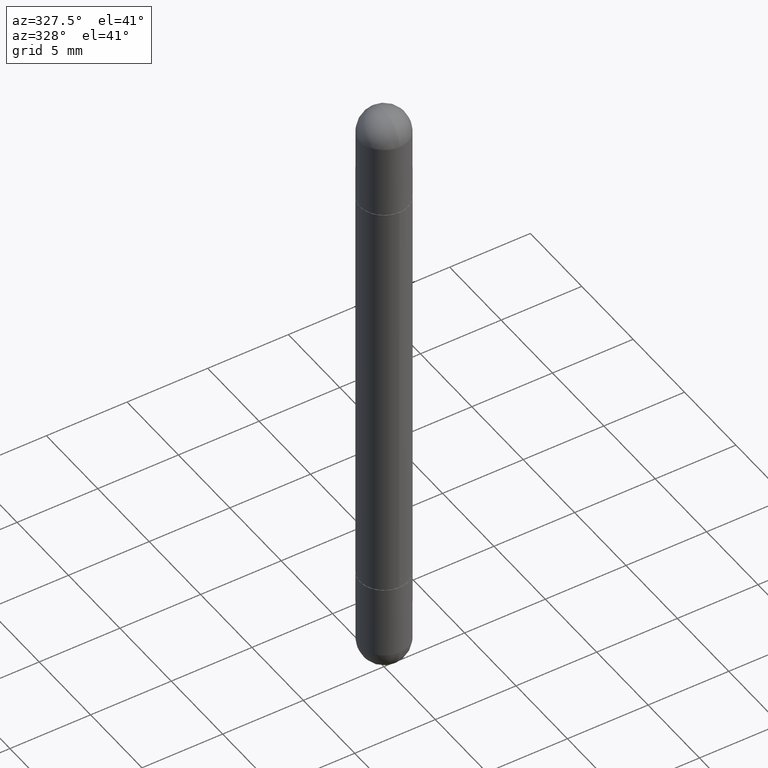
[diagram: clean part render]
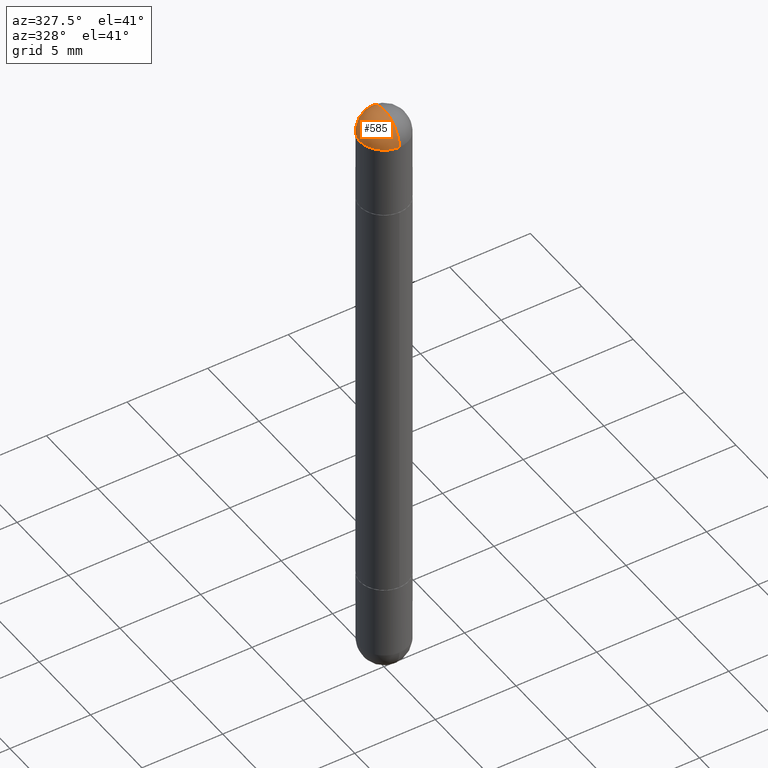
[diagram: same view with one face highlighted and labeled with its STEP entity id]
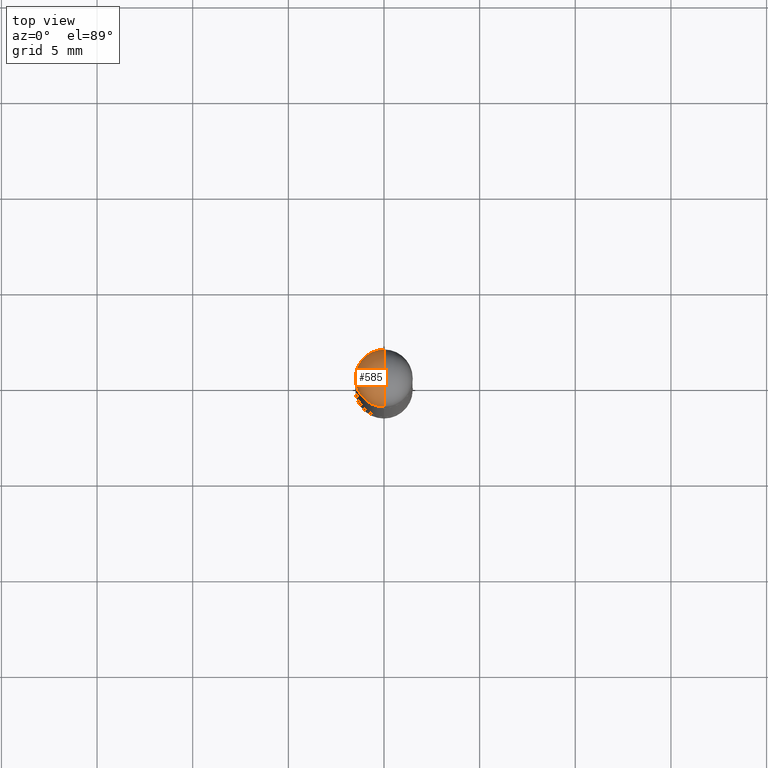
[diagram: same view with one face highlighted and labeled with its STEP entity id]
A machine part, auxiliary view. The second image highlights one B-rep face of the part: STEP entity #585.
A second angle (top view) of the same face is appended — the face is thin or edge-on in the first view.
In plain terms, the highlighted spherical surface has radius 1.4999 mm.
Its self-contained STEP definition (entity closure, byte-faithful):
#4 = FACE_OUTER_BOUND ( 'NONE', #52, .T. ) ;
#7 = AXIS2_PLACEMENT_3D ( 'NONE', #299, #610, #565 ) ;
#19 = EDGE_CURVE ( 'NONE', #250, #491, #613, .T. ) ;
#52 = EDGE_LOOP ( 'NONE', ( #470, #750, #297, #685 ) ) ;
#70 = CARTESIAN_POINT ( 'NONE',  ( 3.330070981488499955E-29, -5.694171829508798064E-15, -3.414809992080329023E-17 ) ) ;
#143 = DIRECTION ( 'NONE',  ( 1.000000000000000000, -6.982962677686270655E-15, 0.000000000000000000 ) ) ;
#151 = EDGE_CURVE ( 'NONE', #324, #250, #439, .T. ) ;
#187 = AXIS2_PLACEMENT_3D ( 'NONE', #716, #700, #143 ) ;
#188 = DIRECTION ( 'NONE',  ( 6.982962677686265922E-15, 1.000000000000000000, 3.469747663417762014E-15 ) ) ;
#223 = DIRECTION ( 'NONE',  ( -1.000000000000000000, 6.982962677686265922E-15, 4.883557194083112340E-29 ) ) ;
#236 = DIRECTION ( 'NONE',  ( 2.445468806185136597E-29, -3.491481338843145583E-15, 1.000000000000000000 ) ) ;
#248 = SPHERICAL_SURFACE ( 'NONE', #816, 0.05905000000000025506 ) ;
#250 = VERTEX_POINT ( 'NONE', #724 ) ;
#297 = ORIENTED_EDGE ( 'NONE', *, *, #151, .T. ) ;
#299 = CARTESIAN_POINT ( 'NONE',  ( 3.183141170014464762E-29, -5.491615626124592102E-15, -0.05905000000000028976 ) ) ;
#312 = EDGE_CURVE ( 'NONE', #660, #324, #567, .T. ) ;
#324 = VERTEX_POINT ( 'NONE', #601 ) ;
#383 = EDGE_CURVE ( 'NONE', #660, #491, #514, .T. ) ;
#425 = AXIS2_PLACEMENT_3D ( 'NONE', #661, #223, #737 ) ;
#439 = CIRCLE ( 'NONE', #187, 0.05905000000000001914 ) ;
#451 = DIRECTION ( 'NONE',  ( 1.000000000000000000, -6.982962677686265922E-15, -4.883557194083112340E-29 ) ) ;
#466 = AXIS2_PLACEMENT_3D ( 'NONE', #563, #236, #817 ) ;
#470 = ORIENTED_EDGE ( 'NONE', *, *, #383, .F. ) ;
#491 = VERTEX_POINT ( 'NONE', #618 ) ;
#514 = CIRCLE ( 'NONE', #7, 0.05905000000000025506 ) ;
#563 = CARTESIAN_POINT ( 'NONE',  ( 3.514260947928350449E-29, -5.017433257984542594E-15, -0.05905000000000028976 ) ) ;
#565 = DIRECTION ( 'NONE',  ( 6.860497997771530774E-15, 1.000000000000000000, 0.000000000000000000 ) ) ;
#567 = CIRCLE ( 'NONE', #425, 0.05905000000000025506 ) ;
#585 = ADVANCED_FACE ( 'NONE', ( #4 ), #248, .T. ) ;
#601 = CARTESIAN_POINT ( 'NONE',  ( 4.123439461174084467E-16, 0.05904999999999487742, -0.05905000000000008159 ) ) ;
#610 = DIRECTION ( 'NONE',  ( 1.000000000000000000, -6.860497997771530774E-15, -4.840798879624142912E-29 ) ) ;
#613 = CIRCLE ( 'NONE', #466, 0.05905000000000001914 ) ;
#618 = CARTESIAN_POINT ( 'NONE',  ( -4.051124067683763770E-16, -0.05905000000000539678, -0.05905000000000049099 ) ) ;
#638 = CARTESIAN_POINT ( 'NONE',  ( 3.183141170014464762E-29, -5.491615626124592102E-15, -0.05905000000000028976 ) ) ;
#660 = VERTEX_POINT ( 'NONE', #70 ) ;
#661 = CARTESIAN_POINT ( 'NONE',  ( 3.183141170014464762E-29, -5.491615626124592102E-15, -0.05905000000000028976 ) ) ;
#685 = ORIENTED_EDGE ( 'NONE', *, *, #19, .T. ) ;
#700 = DIRECTION ( 'NONE',  ( 2.445468806185136597E-29, -3.491481338843145583E-15, 1.000000000000000000 ) ) ;
#716 = CARTESIAN_POINT ( 'NONE',  ( 3.514260947928350449E-29, -5.017433257984542594E-15, -0.05905000000000028976 ) ) ;
#724 = CARTESIAN_POINT ( 'NONE',  ( -0.05905000000000001914, -4.303062891628101254E-15, -0.05905000000000028976 ) ) ;
#737 = DIRECTION ( 'NONE',  ( -6.982962677686266711E-15, -1.000000000000000000, 0.000000000000000000 ) ) ;
#750 = ORIENTED_EDGE ( 'NONE', *, *, #312, .T. ) ;
#816 = AXIS2_PLACEMENT_3D ( 'NONE', #638, #451, #188 ) ;
#817 = DIRECTION ( 'NONE',  ( 1.000000000000000000, -6.982962677686270655E-15, 0.000000000000000000 ) ) ;